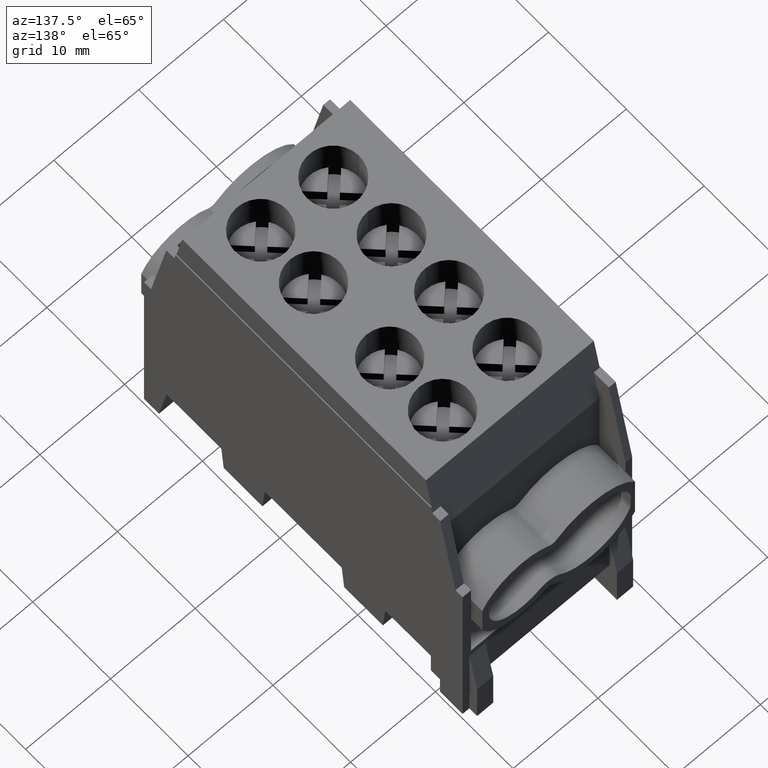
[diagram: clean part render]
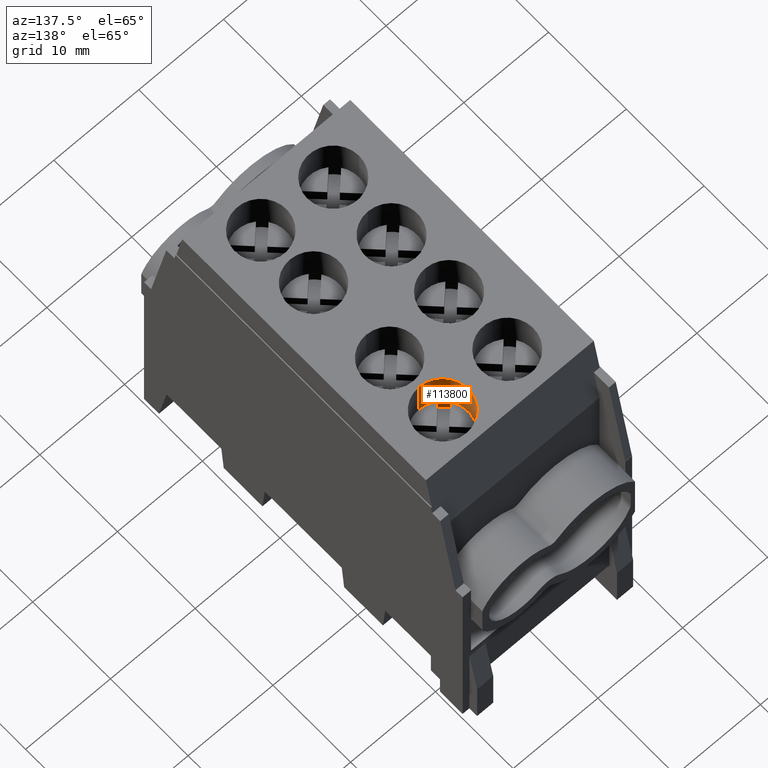
[diagram: same view with one face highlighted and labeled with its STEP entity id]
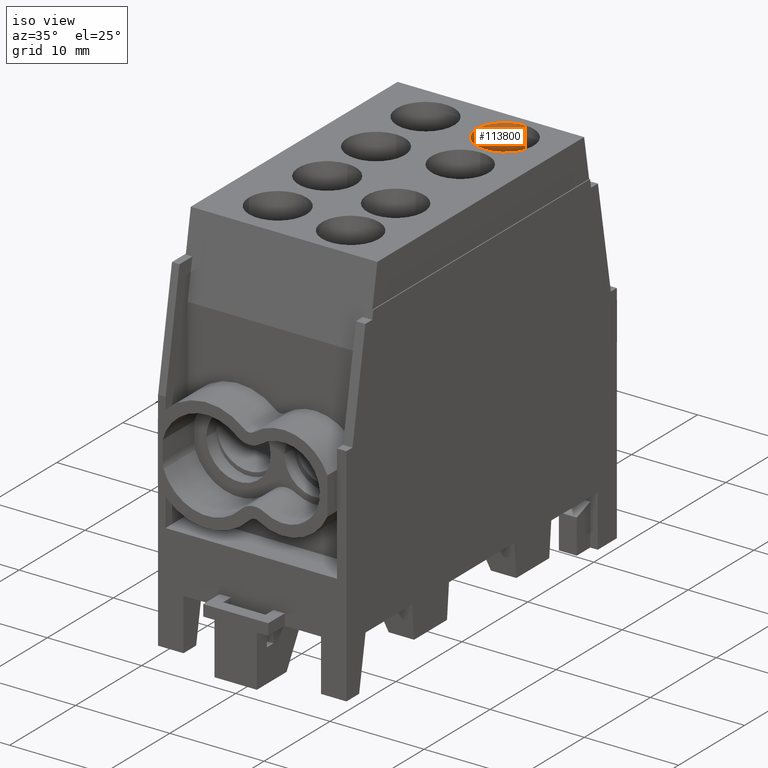
[diagram: same view with one face highlighted and labeled with its STEP entity id]
A machine part, auxiliary view. The second image highlights one B-rep face of the part: STEP entity #113800.
A second angle (iso view) of the same face is appended — the face is thin or edge-on in the first view.
In plain terms, the highlighted cylindrical surface (edge-blend (fillet) strip) has radius 3.025 mm, axis along (0, 0, -1).
Its self-contained STEP definition (entity closure, byte-faithful):
#26550=CARTESIAN_POINT('',(-4.3,-11.7,-0.945359338704983));
#26560=DIRECTION('',(-5.55111512312577E-17,-7.04895318703268E-16,-1.));
#26570=DIRECTION('',(5.71168456883603E-16,1.,-7.04895318703268E-16));
#26580=AXIS2_PLACEMENT_3D('',#26550,#26560,#26570);
#26590=CIRCLE('',#26580,3.025);
#26600=CARTESIAN_POINT('',(-4.29999999999999,-8.67499999999998,
-0.945359338704986));
#26610=VERTEX_POINT('',#26600);
#26620=CARTESIAN_POINT('',(-4.3,-14.725,-0.945359338704981));
#26630=VERTEX_POINT('',#26620);
#26640=EDGE_CURVE('',#26610,#26630,#26590,.T.);
#31560=CARTESIAN_POINT('',(-4.3,-11.7,-5.54535933870498));
#31570=DIRECTION('',(-5.55111512312577E-17,-7.04895318703268E-16,-1.));
#31580=DIRECTION('',(5.71168456883603E-16,1.,-7.04895318703268E-16));
#31590=AXIS2_PLACEMENT_3D('',#31560,#31570,#31580);
#31600=CIRCLE('',#31590,3.025);
#31610=CARTESIAN_POINT('',(-4.3,-14.725,-5.54535933870498));
#31620=VERTEX_POINT('',#31610);
#31650=CARTESIAN_POINT('',(-4.3,-14.725,-0.945359338704979));
#31660=DIRECTION('',(-5.55111512312577E-17,-7.04895318703268E-16,-1.));
#31670=VECTOR('',#31660,1.);
#31680=LINE('',#31650,#31670);
#31690=EDGE_CURVE('',#26630,#31620,#31680,.T.);
#31730=CARTESIAN_POINT('',(-4.29999999999999,-8.67499999999998,
-0.945359338704983));
#31740=DIRECTION('',(-5.55111512312577E-17,-7.04895318703268E-16,-1.));
#31750=VECTOR('',#31740,1.);
#31760=LINE('',#31730,#31750);
#31770=CARTESIAN_POINT('',(-4.29999999999999,-8.67499999999998,
-5.54535933870498));
#31780=VERTEX_POINT('',#31770);
#31790=EDGE_CURVE('',#26610,#31780,#31760,.T.);
#58040=CARTESIAN_POINT('',(-2.58556318029557,-9.20774572099036,
-5.54535933870498));
#58050=VERTEX_POINT('',#58040);
#58150=EDGE_CURVE('',#31780,#58050,#31600,.T.);
#84990=CARTESIAN_POINT('',(-1.80774572099037,-9.98556318029556,
-5.54535933870498));
#85000=VERTEX_POINT('',#84990);
#85050=CARTESIAN_POINT('',(-1.77923587166488,-13.3722359909112,
-5.54535933870498));
#85060=VERTEX_POINT('',#85050);
#85070=EDGE_CURVE('',#85000,#85060,#31600,.T.);
#85290=CARTESIAN_POINT('',(-2.62776400908874,-14.2207641283351,
-5.54535933870498));
#85300=VERTEX_POINT('',#85290);
#85350=EDGE_CURVE('',#85300,#31620,#31600,.T.);
#88020=CARTESIAN_POINT('',(-2.58556318029557,-9.20774572099036,
-0.945359338704983));
#88030=DIRECTION('',(5.55111512312577E-17,7.04895318703268E-16,1.));
#88040=VECTOR('',#88030,1.);
#88050=LINE('',#88020,#88040);
#88060=CARTESIAN_POINT('',(-2.58556318029557,-9.20774572099036,
-6.74535933870499));
#88070=VERTEX_POINT('',#88060);
#88080=EDGE_CURVE('',#88070,#58050,#88050,.T.);
#89880=CARTESIAN_POINT('',(-2.62776400908874,-14.2207641283351,
-6.74535933870498));
#89890=VERTEX_POINT('',#89880);
#89920=CARTESIAN_POINT('',(-2.62776400908874,-14.2207641283351,
-0.945359338704979));
#89930=DIRECTION('',(5.55111512312577E-17,7.04895318703268E-16,1.));
#89940=VECTOR('',#89930,1.);
#89950=LINE('',#89920,#89940);
#89960=EDGE_CURVE('',#89890,#85300,#89950,.T.);
#92250=CARTESIAN_POINT('',(-1.77923587166489,-13.3722359909112,
-0.94535933870498));
#92260=DIRECTION('',(5.55111512312577E-17,7.04895318703268E-16,1.));
#92270=VECTOR('',#92260,1.);
#92280=LINE('',#92250,#92270);
#92290=CARTESIAN_POINT('',(-1.77923587166489,-13.3722359909112,
-6.74535933870498));
#92300=VERTEX_POINT('',#92290);
#92310=EDGE_CURVE('',#92300,#85060,#92280,.T.);
#94220=CARTESIAN_POINT('',(-1.80774572099037,-9.98556318029556,
-6.74535933870499));
#94230=VERTEX_POINT('',#94220);
#94260=CARTESIAN_POINT('',(-1.80774572099037,-9.98556318029556,
-0.945359338704982));
#94270=DIRECTION('',(5.55111512312577E-17,7.04895318703268E-16,1.));
#94280=VECTOR('',#94270,1.);
#94290=LINE('',#94260,#94280);
#94300=EDGE_CURVE('',#94230,#85000,#94290,.T.);
#99360=CARTESIAN_POINT('',(-4.3,-11.7,-6.74535933870499));
#99370=DIRECTION('',(-5.55111512312577E-17,-5.80952514931361E-16,-1.));
#99380=DIRECTION('',(-0.707106781186547,0.707106781186548,
-3.7154315138825E-16));
#99390=AXIS2_PLACEMENT_3D('',#99360,#99370,#99380);
#99400=CIRCLE('',#99390,3.025);
#99410=EDGE_CURVE('',#88070,#94230,#99400,.T.);
#99450=CARTESIAN_POINT('',(-4.3,-11.7,-6.74535933870499));
#99460=DIRECTION('',(-5.55111512312577E-17,-5.80952514931361E-16,-1.));
#99470=DIRECTION('',(-0.707106781186547,0.707106781186548,
-3.7154315138825E-16));
#99480=AXIS2_PLACEMENT_3D('',#99450,#99460,#99470);
#99490=CIRCLE('',#99480,3.025);
#99500=EDGE_CURVE('',#92300,#89890,#99490,.T.);
#113610=CARTESIAN_POINT('',(-4.3,-11.7,-0.945359338704981));
#113620=DIRECTION('',(-5.55111512312577E-17,-7.04895318703268E-16,-1.));
#113630=DIRECTION('',(5.71168456883603E-16,1.,-7.04895318703268E-16));
#113640=AXIS2_PLACEMENT_3D('',#113610,#113620,#113630);
#113650=CYLINDRICAL_SURFACE('',#113640,3.025);
#113660=ORIENTED_EDGE('',*,*,#26640,.F.);
#113670=ORIENTED_EDGE('',*,*,#31690,.F.);
#113680=ORIENTED_EDGE('',*,*,#85350,.T.);
#113690=ORIENTED_EDGE('',*,*,#89960,.T.);
#113700=ORIENTED_EDGE('',*,*,#99500,.T.);
#113710=ORIENTED_EDGE('',*,*,#92310,.F.);
#113720=ORIENTED_EDGE('',*,*,#85070,.T.);
#113730=ORIENTED_EDGE('',*,*,#94300,.T.);
#113740=ORIENTED_EDGE('',*,*,#99410,.T.);
#113750=ORIENTED_EDGE('',*,*,#88080,.F.);
#113760=ORIENTED_EDGE('',*,*,#58150,.T.);
#113770=ORIENTED_EDGE('',*,*,#31790,.T.);
#113780=EDGE_LOOP('',(#113770,#113760,#113750,#113740,#113730,#113720,
#113710,#113700,#113690,#113680,#113670,#113660));
#113790=FACE_OUTER_BOUND('',#113780,.T.);
#113800=ADVANCED_FACE('',(#113790),#113650,.F.);